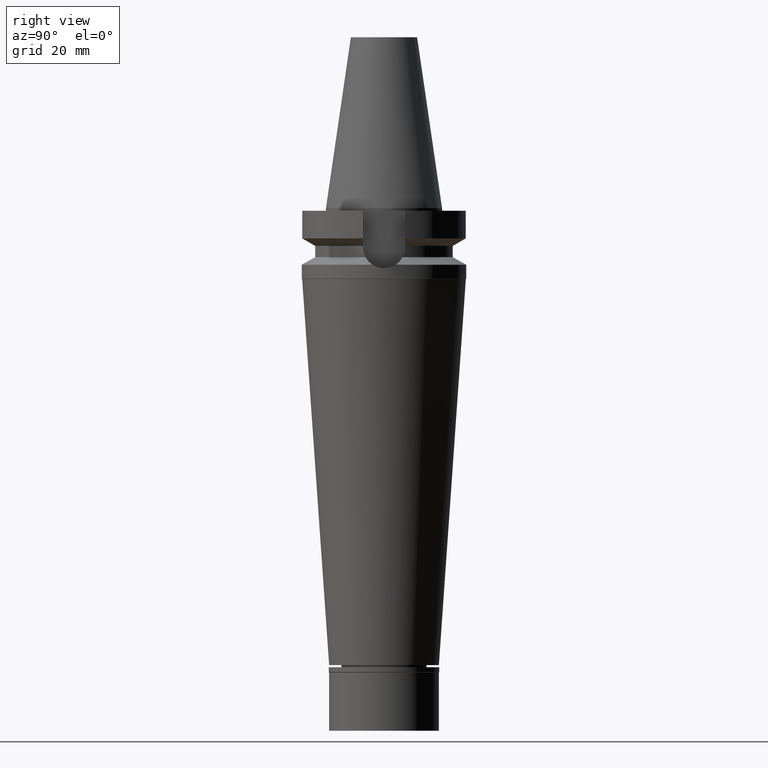
[diagram: clean part render]
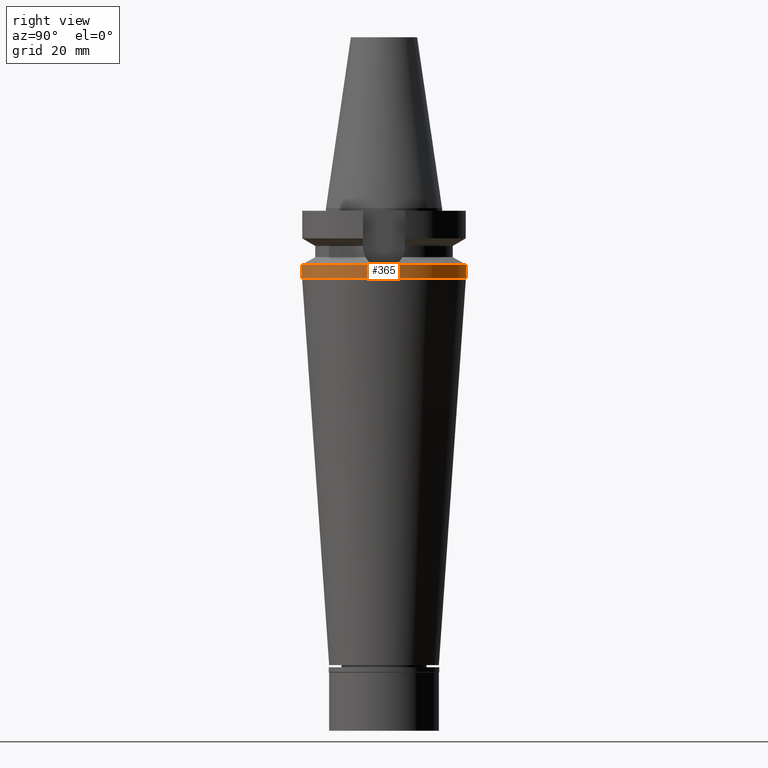
[diagram: same view with one face highlighted and labeled with its STEP entity id]
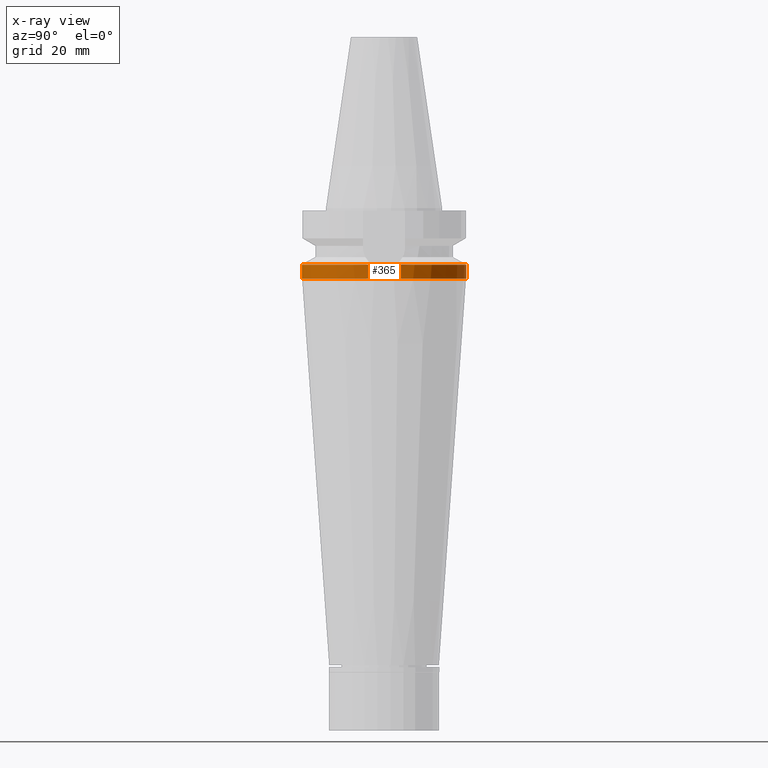
[diagram: x-ray of the same camera — body ghosted, the highlighted face saturated]
A machine part, right view. The second image highlights one B-rep face of the part: STEP entity #365.
The next image is the same camera in x-ray: the body ghosted, the highlighted face saturated — about 0% of this face is hidden behind the body in this view.
In plain terms, the highlighted cylindrical surface (partial cylindrical patch) has radius 31.5 mm, axis along (0, 0, -1).
Its self-contained STEP definition (entity closure, byte-faithful):
#6 = AXIS2_PLACEMENT_3D ( 'NONE', #2626, #454, #226 ) ;
#45 = CARTESIAN_POINT ( 'NONE',  ( 31.41415831007194370, 2.322424573560516237, -22.65772117385945705 ) ) ;
#100 = VERTEX_POINT ( 'NONE', #1562 ) ;
#104 = CARTESIAN_POINT ( 'NONE',  ( 31.17899877608999759, -4.485536235554000051, -21.63449434733000132 ) ) ;
#118 = CARTESIAN_POINT ( 'NONE',  ( 31.23204689278756518, -4.116798345877915821, -21.88193073962002799 ) ) ;
#150 = CARTESIAN_POINT ( 'NONE',  ( 0.0000000000000000000, -31.50000000000000000, -27.00000000000000000 ) ) ;
#226 = DIRECTION ( 'NONE',  ( 0.0000000000000000000, 1.000000000000000000, 0.0000000000000000000 ) ) ;
#244 = DIRECTION ( 'NONE',  ( 0.0000000000000000000, 0.0000000000000000000, -1.000000000000000000 ) ) ;
#254 = EDGE_CURVE ( 'NONE', #669, #2132, #2036, .T. ) ;
#266 = EDGE_CURVE ( 'NONE', #2132, #3007, #2395, .T. ) ;
#305 = LINE ( 'NONE', #1272, #1892 ) ;
#313 = CARTESIAN_POINT ( 'NONE',  ( 31.28509562279589673, 3.748056193061810593, -22.12936999262702997 ) ) ;
#365 = ADVANCED_FACE ( 'NONE', ( #1156 ), #1201, .T. ) ;
#437 = EDGE_CURVE ( 'NONE', #1246, #1144, #2649, .T. ) ;
#454 = DIRECTION ( 'NONE',  ( 0.0000000000000000000, 0.0000000000000000000, -1.000000000000000000 ) ) ;
#536 = ORIENTED_EDGE ( 'NONE', *, *, #965, .F. ) ;
#573 = CARTESIAN_POINT ( 'NONE',  ( 31.41959241031157291, 2.247869166924401085, -22.67985827420683975 ) ) ;
#590 = CARTESIAN_POINT ( 'NONE',  ( 31.41517230738297783, 2.308670586037153249, -22.66185457918616919 ) ) ;
#604 = CARTESIAN_POINT ( 'NONE',  ( 31.50000021574000186, -0.7653414351715235320, -23.00000000000000711 ) ) ;
#618 = ORIENTED_EDGE ( 'NONE', *, *, #2077, .F. ) ;
#619 = CARTESIAN_POINT ( 'NONE',  ( 31.33669893784666982, -3.204466956879686634, -22.33739390968395355 ) ) ;
#635 = CARTESIAN_POINT ( 'NONE',  ( 31.37853686786940699, -2.762253510993322170, -22.51183027672371750 ) ) ;
#660 = DIRECTION ( 'NONE',  ( 0.9898094849552905306, -0.1423979757318985240, 0.0000000000000000000 ) ) ;
#669 = VERTEX_POINT ( 'NONE', #2309 ) ;
#711 = DIRECTION ( 'NONE',  ( 0.0000000000000000000, -1.000000000000000000, 0.0000000000000000000 ) ) ;
#738 = CIRCLE ( 'NONE', #2506, 31.50000000000001421 ) ;
#784 = CARTESIAN_POINT ( 'NONE',  ( 31.17899877608999759, 4.485536235554000051, -21.63449434733000132 ) ) ;
#820 = CARTESIAN_POINT ( 'NONE',  ( 31.36322091672140999, 3.008416738122797529, -22.44999847298874585 ) ) ;
#831 = CARTESIAN_POINT ( 'NONE',  ( 31.47112502978219339, 1.356847492481575657, -22.88727726255694961 ) ) ;
#883 = VECTOR ( 'NONE', #1663, 1000.000000000000000 ) ;
#892 = CARTESIAN_POINT ( 'NONE',  ( 31.38990833646922951, -2.631620583947837932, -22.55864791700890493 ) ) ;
#965 = EDGE_CURVE ( 'NONE', #100, #1144, #1049, .T. ) ;
#1049 = B_SPLINE_CURVE_WITH_KNOTS ( 'NONE', 3,
 ( #2989, #2039, #2962, #831, #2520, #2016, #1505, #2235, #573, #2476, #590, #45, #820, #313, #1783 ),
 .UNSPECIFIED., .F., .F.,
 ( 4, 2, 2, 1, 1, 1, 2, 2, 4 ),
 ( 0.0000000000000000000, 0.2500000000000107137, 0.3750000000000158762, 0.4375000000000183187, 0.4687500000000194289, 0.4843750000000198175, 0.4921875000000198730, 0.5000000000000198730, 1.000000000000000000 ),
 .UNSPECIFIED. ) ;
#1079 = CARTESIAN_POINT ( 'NONE',  ( 31.41248047080929240, -2.345020287366833767, -22.65087923802431646 ) ) ;
#1125 = CARTESIAN_POINT ( 'NONE',  ( 31.40780092006249191, -2.406958960397132863, -22.63179098405921152 ) ) ;
#1129 = DIRECTION ( 'NONE',  ( 0.0000000000000000000, 0.0000000000000000000, -1.000000000000000000 ) ) ;
#1142 = CARTESIAN_POINT ( 'NONE',  ( 31.40202791471770993, -2.481453087991143835, -22.60822425879186426 ) ) ;
#1144 = VERTEX_POINT ( 'NONE', #784 ) ;
#1156 = FACE_OUTER_BOUND ( 'NONE', #2658, .T. ) ;
#1201 = CYLINDRICAL_SURFACE ( 'NONE', #1935, 31.50000000000000000 ) ;
#1204 = ORIENTED_EDGE ( 'NONE', *, *, #437, .T. ) ;
#1246 = VERTEX_POINT ( 'NONE', #2203 ) ;
#1272 = CARTESIAN_POINT ( 'NONE',  ( 0.0000000000000000000, 31.50000000000000000, -21.63449434733000132 ) ) ;
#1330 = ORIENTED_EDGE ( 'NONE', *, *, #254, .T. ) ;
#1367 = CARTESIAN_POINT ( 'NONE',  ( 31.50000021574000186, 5.577707844651999752E-14, -23.00000098614000166 ) ) ;
#1402 = CARTESIAN_POINT ( 'NONE',  ( 0.0000000000000000000, 31.50000000000000000, -27.00000000000000000 ) ) ;
#1452 = CARTESIAN_POINT ( 'NONE',  ( 0.0000000000000000000, 2.183484010539999864E-14, 78.29500000000000171 ) ) ;
#1505 = CARTESIAN_POINT ( 'NONE',  ( 31.43706133384756995, 1.992083385739381818, -22.75076404285584530 ) ) ;
#1512 = DIRECTION ( 'NONE',  ( 0.0000000000000000000, 1.099151708819000049E-13, -1.000000000000000000 ) ) ;
#1562 = CARTESIAN_POINT ( 'NONE',  ( 31.50000021574000186, 5.577707844651999752E-14, -23.00000098614000166 ) ) ;
#1643 = CARTESIAN_POINT ( 'NONE',  ( 31.17899877608999759, -4.485536235554000051, -21.63449434733000132 ) ) ;
#1644 = EDGE_CURVE ( 'NONE', #1764, #669, #738, .T. ) ;
#1663 = DIRECTION ( 'NONE',  ( 0.0000000000000000000, -1.105773104655000034E-13, -1.000000000000000000 ) ) ;
#1764 = VERTEX_POINT ( 'NONE', #1643 ) ;
#1783 = CARTESIAN_POINT ( 'NONE',  ( 31.17899877608999759, 4.485536235554000051, -21.63449434733000132 ) ) ;
#1847 = CARTESIAN_POINT ( 'NONE',  ( 31.35448291910644514, -3.025772410906745424, -22.41206993328777841 ) ) ;
#1867 = CARTESIAN_POINT ( 'NONE',  ( 31.41021361154321667, -2.375162425202305805, -22.64163351047540473 ) ) ;
#1892 = VECTOR ( 'NONE', #1512, 1000.000000000000000 ) ;
#1935 = AXIS2_PLACEMENT_3D ( 'NONE', #1452, #244, #2854 ) ;
#2016 = CARTESIAN_POINT ( 'NONE',  ( 31.44585924206910832, 1.845582541063910620, -22.78622007544201722 ) ) ;
#2023 = ORIENTED_EDGE ( 'NONE', *, *, #1644, .T. ) ;
#2036 = LINE ( 'NONE', #2828, #883 ) ;
#2039 = CARTESIAN_POINT ( 'NONE',  ( 31.50000021573999476, 0.3826689643085666170, -23.00000000000000000 ) ) ;
#2077 = EDGE_CURVE ( 'NONE', #1764, #100, #2116, .T. ) ;
#2116 = B_SPLINE_CURVE_WITH_KNOTS ( 'NONE', 3,
 ( #104, #118, #3024, #619, #1847, #635, #892, #1142, #1125, #1867, #2817, #1079, #2350, #604, #1367 ),
 .UNSPECIFIED., .F., .F.,
 ( 4, 2, 2, 1, 1, 1, 2, 2, 4 ),
 ( 0.0000000000000000000, 0.2500000000000031641, 0.3750000000000048850, 0.4375000000000057176, 0.4687500000000060507, 0.4843750000000063838, 0.4921875000000067168, 0.5000000000000071054, 1.000000000000000000 ),
 .UNSPECIFIED. ) ;
#2132 = VERTEX_POINT ( 'NONE', #150 ) ;
#2203 = CARTESIAN_POINT ( 'NONE',  ( 0.0000000000000000000, 31.50000000000000000, -21.63449434733000132 ) ) ;
#2235 = CARTESIAN_POINT ( 'NONE',  ( 31.42561277379007123, 2.162678577852322981, -22.70434105560449822 ) ) ;
#2309 = CARTESIAN_POINT ( 'NONE',  ( 0.0000000000000000000, -31.50000000000000000, -21.63449434733000132 ) ) ;
#2350 = CARTESIAN_POINT ( 'NONE',  ( 31.47112772256698676, -1.555196946341322439, -22.89003045173351580 ) ) ;
#2387 = EDGE_CURVE ( 'NONE', #1246, #3007, #305, .T. ) ;
#2395 = CIRCLE ( 'NONE', #2793, 31.50000000000000000 ) ;
#2421 = CARTESIAN_POINT ( 'NONE',  ( 0.0000000000000000000, 2.183484010539999864E-14, -27.00000000000000000 ) ) ;
#2476 = CARTESIAN_POINT ( 'NONE',  ( 31.41694880808155332, 2.284353645618799611, -22.66909252095712546 ) ) ;
#2506 = AXIS2_PLACEMENT_3D ( 'NONE', #2603, #1129, #660 ) ;
#2520 = CARTESIAN_POINT ( 'NONE',  ( 31.46210153417036537, 1.552447017042054789, -22.85142317597522776 ) ) ;
#2603 = CARTESIAN_POINT ( 'NONE',  ( 0.0000000000000000000, 0.0000000000000000000, -21.63449434733000132 ) ) ;
#2626 = CARTESIAN_POINT ( 'NONE',  ( 0.0000000000000000000, 0.0000000000000000000, -21.63449434733000132 ) ) ;
#2649 = CIRCLE ( 'NONE', #6, 31.50000000000000000 ) ;
#2658 = EDGE_LOOP ( 'NONE', ( #2023, #1330, #2927, #2829, #1204, #536, #618 ) ) ;
#2793 = AXIS2_PLACEMENT_3D ( 'NONE', #2421, #2874, #711 ) ;
#2817 = CARTESIAN_POINT ( 'NONE',  ( 31.41180841615991781, -2.353993861655641062, -22.64813844412067212 ) ) ;
#2828 = CARTESIAN_POINT ( 'NONE',  ( 0.0000000000000000000, -31.50000000000000000, -21.63449434733000132 ) ) ;
#2829 = ORIENTED_EDGE ( 'NONE', *, *, #2387, .F. ) ;
#2854 = DIRECTION ( 'NONE',  ( 0.0000000000000000000, -1.000000000000000000, 0.0000000000000000000 ) ) ;
#2874 = DIRECTION ( 'NONE',  ( 0.0000000000000000000, 0.0000000000000000000, 1.000000000000000000 ) ) ;
#2927 = ORIENTED_EDGE ( 'NONE', *, *, #266, .T. ) ;
#2962 = CARTESIAN_POINT ( 'NONE',  ( 31.49278141925054797, 0.7713071347971495184, -22.97266833080110615 ) ) ;
#2989 = CARTESIAN_POINT ( 'NONE',  ( 31.50000021574000186, 5.577707844651999752E-14, -23.00000098614000166 ) ) ;
#3007 = VERTEX_POINT ( 'NONE', #1402 ) ;
#3024 = CARTESIAN_POINT ( 'NONE',  ( 31.27810294781394163, -3.746771248087828798, -22.08603490972261341 ) ) ;